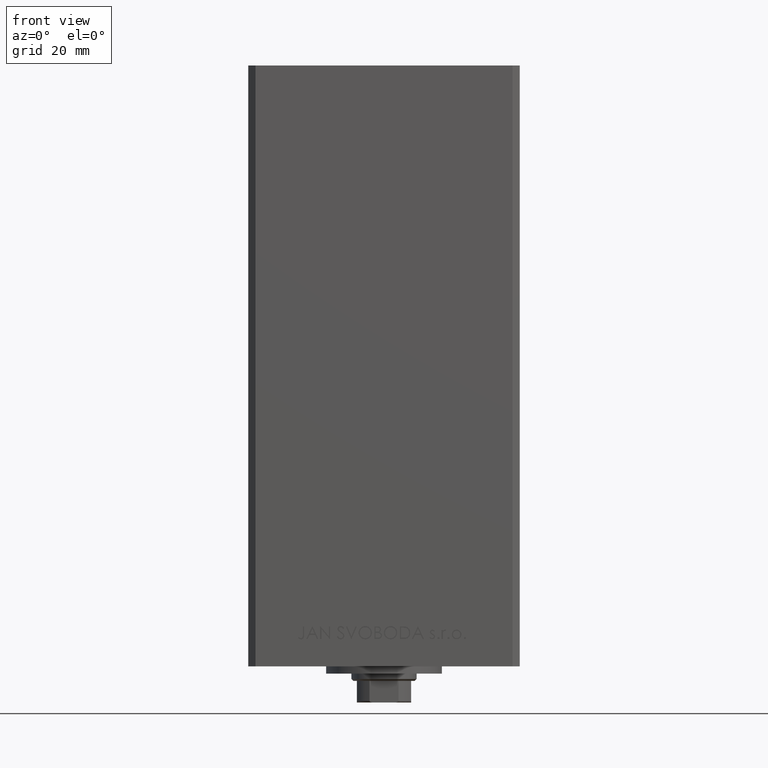
[diagram: clean part render]
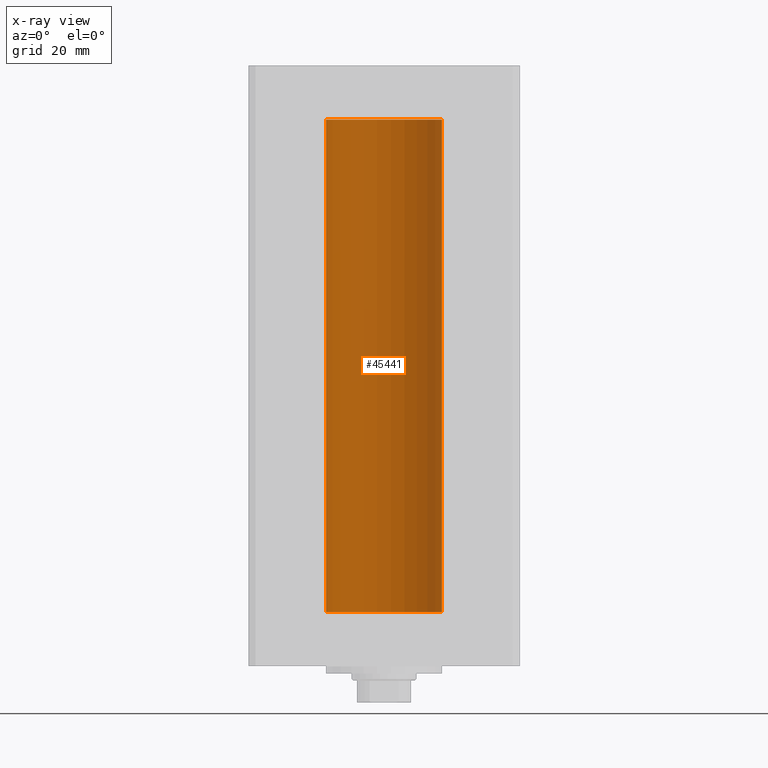
[diagram: x-ray — body ghosted, one internal face saturated and labeled with its STEP entity id]
A machine part, front view, then the same camera in x-ray: the body is ghosted and one INTERNAL B-rep face — a face not visible from any outside direction — is saturated and labeled: STEP entity #45441.
In plain terms, the highlighted cylindrical surface (partial cylindrical patch) has radius 16 mm, axis along (-0, -0, -1).
Its self-contained STEP definition (entity closure, byte-faithful):
#69 = AXIS2_PLACEMENT_3D ( 'NONE', #34391, #528, #13602 ) ;
#528 = DIRECTION ( 'NONE',  ( -0.000000000000000000, 0.000000000000000000, 1.000000000000000000 ) ) ;
#3252 = CIRCLE ( 'NONE', #69, 16.00000000000000000 ) ;
#3329 = DIRECTION ( 'NONE',  ( -0.000000000000000000, 0.000000000000000000, 1.000000000000000000 ) ) ;
#4182 = EDGE_CURVE ( 'NONE', #14584, #22286, #26238, .T. ) ;
#5132 = EDGE_CURVE ( 'NONE', #23045, #9135, #5479, .T. ) ;
#5479 = LINE ( 'NONE', #39105, #20756 ) ;
#6557 = DIRECTION ( 'NONE',  ( 1.000000000000000000, 0.000000000000000000, 0.000000000000000000 ) ) ;
#9135 = VERTEX_POINT ( 'NONE', #17189 ) ;
#9732 = CYLINDRICAL_SURFACE ( 'NONE', #11733, 16.00000000000000000 ) ;
#11733 = AXIS2_PLACEMENT_3D ( 'NONE', #24803, #39912, #12944 ) ;
#12944 = DIRECTION ( 'NONE',  ( -1.000000000000000000, 0.000000000000000000, 0.000000000000000000 ) ) ;
#13602 = DIRECTION ( 'NONE',  ( 1.000000000000000000, 0.000000000000000000, 0.000000000000000000 ) ) ;
#14584 = VERTEX_POINT ( 'NONE', #32478 ) ;
#17189 = CARTESIAN_POINT ( 'NONE',  ( -16.00000000000000000, 0.000000000000000000, 0.000000000000000000 ) ) ;
#20756 = VECTOR ( 'NONE', #22608, 1000.000000000000000 ) ;
#22286 = VERTEX_POINT ( 'NONE', #31039 ) ;
#22503 = EDGE_CURVE ( 'NONE', #14584, #23045, #3252, .T. ) ;
#22516 = ORIENTED_EDGE ( 'NONE', *, *, #4182, .F. ) ;
#22539 = CARTESIAN_POINT ( 'NONE',  ( 16.00000000000000000, 1.959434878635765131E-15, 136.0000000000000000 ) ) ;
#22608 = DIRECTION ( 'NONE',  ( -0.000000000000000000, -0.000000000000000000, -1.000000000000000000 ) ) ;
#23045 = VERTEX_POINT ( 'NONE', #46526 ) ;
#24803 = CARTESIAN_POINT ( 'NONE',  ( 0.000000000000000000, 0.000000000000000000, 136.0000000000000000 ) ) ;
#26238 = LINE ( 'NONE', #22539, #45991 ) ;
#29346 = ORIENTED_EDGE ( 'NONE', *, *, #38731, .F. ) ;
#31039 = CARTESIAN_POINT ( 'NONE',  ( 16.00000000000000000, 1.959434878635765131E-15, 0.000000000000000000 ) ) ;
#32478 = CARTESIAN_POINT ( 'NONE',  ( 16.00000000000000000, 1.959434878635765131E-15, 136.0000000000000000 ) ) ;
#32935 = ORIENTED_EDGE ( 'NONE', *, *, #5132, .T. ) ;
#33253 = CARTESIAN_POINT ( 'NONE',  ( 0.000000000000000000, 0.000000000000000000, 0.000000000000000000 ) ) ;
#33634 = CIRCLE ( 'NONE', #35223, 16.00000000000000000 ) ;
#34391 = CARTESIAN_POINT ( 'NONE',  ( 0.000000000000000000, 0.000000000000000000, 136.0000000000000000 ) ) ;
#35223 = AXIS2_PLACEMENT_3D ( 'NONE', #33253, #3329, #6557 ) ;
#37626 = DIRECTION ( 'NONE',  ( -0.000000000000000000, -0.000000000000000000, -1.000000000000000000 ) ) ;
#38731 = EDGE_CURVE ( 'NONE', #22286, #9135, #33634, .T. ) ;
#39105 = CARTESIAN_POINT ( 'NONE',  ( -16.00000000000000000, 0.000000000000000000, 136.0000000000000000 ) ) ;
#39912 = DIRECTION ( 'NONE',  ( -0.000000000000000000, -0.000000000000000000, -1.000000000000000000 ) ) ;
#40985 = ORIENTED_EDGE ( 'NONE', *, *, #22503, .T. ) ;
#43616 = FACE_OUTER_BOUND ( 'NONE', #44740, .T. ) ;
#44740 = EDGE_LOOP ( 'NONE', ( #22516, #40985, #32935, #29346 ) ) ;
#45441 = ADVANCED_FACE ( 'NONE', ( #43616 ), #9732, .F. ) ;
#45991 = VECTOR ( 'NONE', #37626, 1000.000000000000000 ) ;
#46526 = CARTESIAN_POINT ( 'NONE',  ( -16.00000000000000000, 0.000000000000000000, 136.0000000000000000 ) ) ;